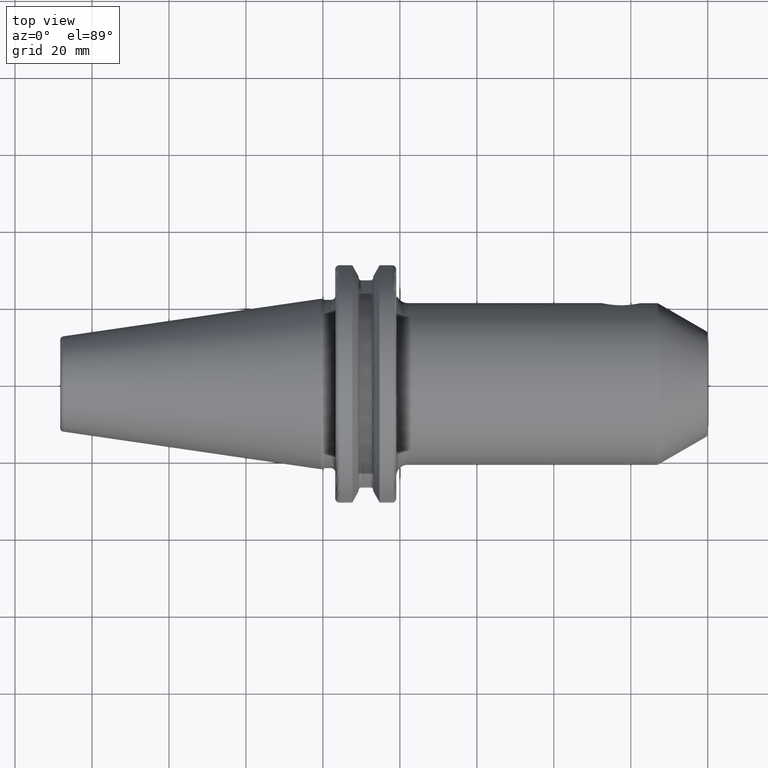
[diagram: clean part render]
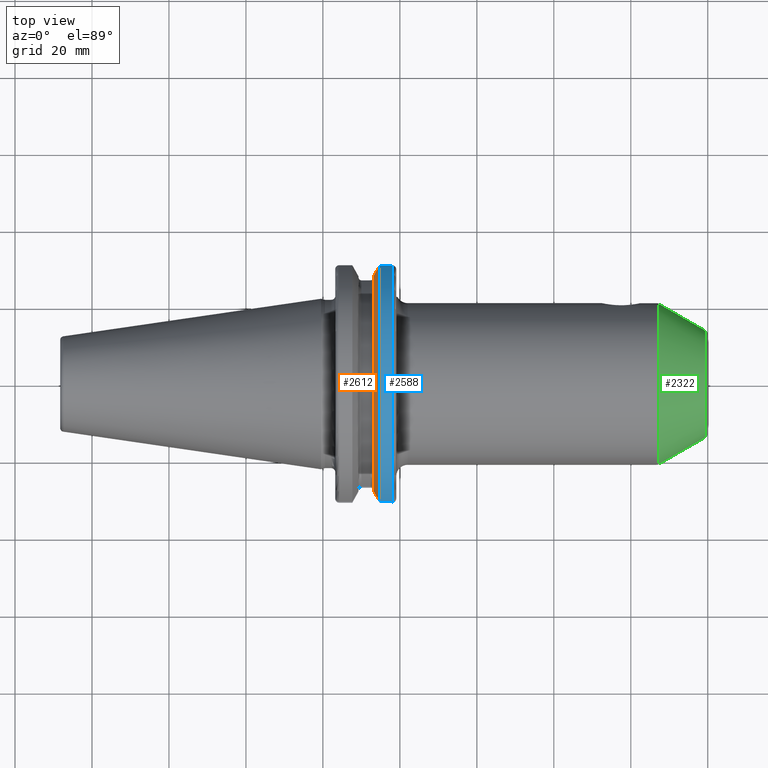
[diagram: same view with three faces highlighted in distinct colors, each labeled with its STEP entity id]
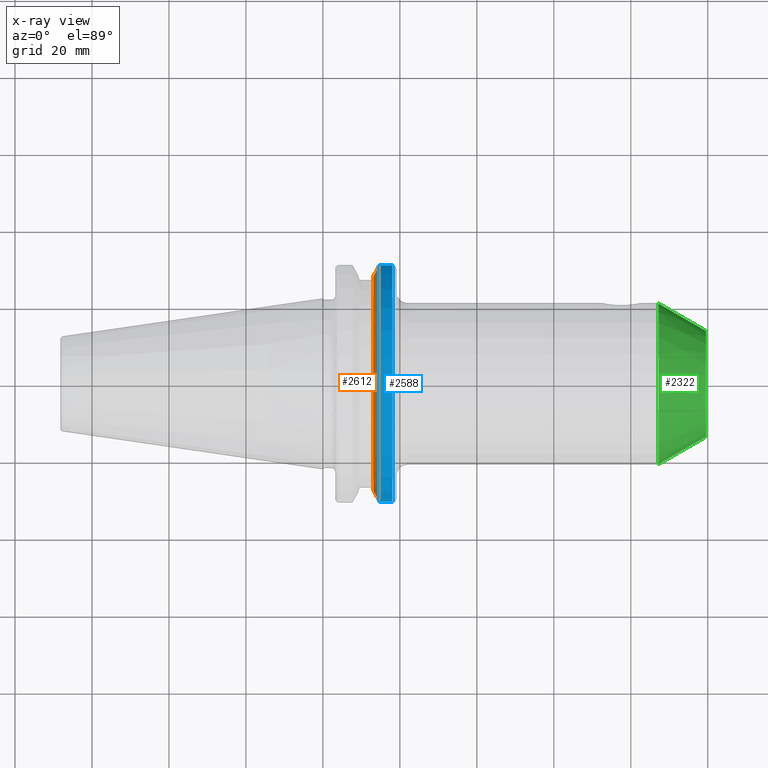
[diagram: x-ray of the same camera — body ghosted, the three highlighted faces saturated]
A machine part, top view with three faces highlighted in distinct colors.
The next image is the same camera in x-ray (body ghosted, the three faces saturated) — at least one of them is partly hidden behind the body in this view.
Their STEP definitions:

[orange] entity #2612 — the highlighted conical surface has half-angle 60 deg.
#917=CARTESIAN_POINT('',(1.470405352042E1,0.E0,0.E0));
#918=DIRECTION('',(1.E0,0.E0,0.E0));
#919=DIRECTION('',(0.E0,9.669363825036E-1,2.550177095632E-1));
#920=AXIS2_PLACEMENT_3D('',#917,#918,#919);
#949=CARTESIAN_POINT('',(1.470405352042E1,3.071231684927E1,8.1E0));
#950=CARTESIAN_POINT('',(1.451824513517E1,3.037948258059E1,8.1E0));
#951=CARTESIAN_POINT('',(1.415074718503E1,2.972048825911E1,8.1E0));
#952=CARTESIAN_POINT('',(1.361195207986E1,2.875212438619E1,8.1E0));
#953=CARTESIAN_POINT('',(1.326094199325E1,2.811971443922E1,8.1E0));
#954=CARTESIAN_POINT('',(1.30875E1,2.780681820245E1,8.1E0));
#956=CARTESIAN_POINT('',(1.30875E1,-2.780681820245E1,8.1E0));
#957=CARTESIAN_POINT('',(1.326086175289E1,-2.811956968242E1,8.1E0));
#958=CARTESIAN_POINT('',(1.361176448515E1,-2.875178670793E1,8.1E0));
#959=CARTESIAN_POINT('',(1.415055493375E1,-2.972014324708E1,8.1E0));
#960=CARTESIAN_POINT('',(1.451816260441E1,-3.037933474515E1,8.1E0));
#961=CARTESIAN_POINT('',(1.470405352042E1,-3.071231684927E1,8.1E0));
#963=CARTESIAN_POINT('',(1.30875E1,0.E0,0.E0));
#964=DIRECTION('',(1.E0,0.E0,0.E0));
#965=DIRECTION('',(0.E0,9.600957415706E-1,2.796715341576E-1));
#966=AXIS2_PLACEMENT_3D('',#963,#964,#965);
#1460=CARTESIAN_POINT('',(1.30875E1,2.780681820245E1,8.1E0));
#1461=VERTEX_POINT('',#1460);
#1470=CARTESIAN_POINT('',(1.30875E1,-2.780681820245E1,8.1E0));
#1471=VERTEX_POINT('',#1470);
#1480=VERTEX_POINT('',#949);
#1481=VERTEX_POINT('',#961);
#2601=CARTESIAN_POINT('',(1.389577676021E1,0.E0,0.E0));
#2602=DIRECTION('',(1.E0,0.E0,0.E0));
#2603=DIRECTION('',(0.E0,-1.E0,0.E0));
#2604=AXIS2_PLACEMENT_3D('',#2601,#2602,#2603);
#2605=CONICAL_SURFACE('',#2604,3.036252358474E1,6.E1);
#2606=ORIENTED_EDGE('',*,*,#2180,.F.);
#2607=ORIENTED_EDGE('',*,*,#2584,.T.);
#2608=ORIENTED_EDGE('',*,*,#2451,.F.);
#2609=ORIENTED_EDGE('',*,*,#2132,.F.);
#2610=EDGE_LOOP('',(#2606,#2607,#2608,#2609));
#2611=FACE_OUTER_BOUND('',#2610,.F.);
#2612=ADVANCED_FACE('',(#2611),#2605,.T.);
#921=CIRCLE('',#920,3.17625E1);
#955=B_SPLINE_CURVE_WITH_KNOTS('',3,(#949,#950,#951,#952,#953,#954),
.UNSPECIFIED.,.F.,.F.,(4,1,1,4),(0.E0,3.333333333333E-1,6.666666666667E-1,1.E0),
.UNSPECIFIED.);
#962=B_SPLINE_CURVE_WITH_KNOTS('',3,(#956,#957,#958,#959,#960,#961),
.UNSPECIFIED.,.F.,.F.,(4,1,1,4),(0.E0,3.333333333333E-1,6.666666666667E-1,1.E0),
.UNSPECIFIED.);
#967=CIRCLE('',#966,2.896254716948E1);
#2132=EDGE_CURVE('',#1461,#1471,#967,.T.);
#2180=EDGE_CURVE('',#1480,#1461,#955,.T.);
#2451=EDGE_CURVE('',#1471,#1481,#962,.T.);
#2584=EDGE_CURVE('',#1480,#1481,#921,.T.);

[blue] entity #2588 — the highlighted cylindrical surface (partial cylindrical patch) has radius 31.7625 mm, axis along (1, 0, 0).
#904=DIRECTION('',(1.E0,0.E0,0.E0));
#905=VECTOR('',#904,3.345946479578E0);
#906=CARTESIAN_POINT('',(1.470405352042E1,3.071231684927E1,8.1E0));
#907=LINE('',#906,#905);
#908=CARTESIAN_POINT('',(1.805E1,0.E0,0.E0));
#909=DIRECTION('',(1.E0,0.E0,0.E0));
#910=DIRECTION('',(0.E0,9.669363825036E-1,2.550177095632E-1));
#911=AXIS2_PLACEMENT_3D('',#908,#909,#910);
#913=DIRECTION('',(1.E0,0.E0,0.E0));
#914=VECTOR('',#913,3.345946479578E0);
#915=CARTESIAN_POINT('',(1.470405352042E1,-3.071231684927E1,8.1E0));
#916=LINE('',#915,#914);
#917=CARTESIAN_POINT('',(1.470405352042E1,0.E0,0.E0));
#918=DIRECTION('',(1.E0,0.E0,0.E0));
#919=DIRECTION('',(0.E0,9.669363825036E-1,2.550177095632E-1));
#920=AXIS2_PLACEMENT_3D('',#917,#918,#919);
#949=CARTESIAN_POINT('',(1.470405352042E1,3.071231684927E1,8.1E0));
#961=CARTESIAN_POINT('',(1.470405352042E1,-3.071231684927E1,8.1E0));
#1480=VERTEX_POINT('',#949);
#1481=VERTEX_POINT('',#961);
#1504=CARTESIAN_POINT('',(1.805E1,3.071231684927E1,8.1E0));
#1505=VERTEX_POINT('',#1504);
#1508=CARTESIAN_POINT('',(1.805E1,-3.071231684927E1,8.1E0));
#1509=VERTEX_POINT('',#1508);
#2576=CARTESIAN_POINT('',(-7.2615E1,0.E0,0.E0));
#2577=DIRECTION('',(1.E0,0.E0,0.E0));
#2578=DIRECTION('',(0.E0,-1.E0,0.E0));
#2579=AXIS2_PLACEMENT_3D('',#2576,#2577,#2578);
#2580=CYLINDRICAL_SURFACE('',#2579,3.17625E1);
#2581=ORIENTED_EDGE('',*,*,#2178,.T.);
#2582=ORIENTED_EDGE('',*,*,#2432,.T.);
#2583=ORIENTED_EDGE('',*,*,#2453,.F.);
#2585=ORIENTED_EDGE('',*,*,#2584,.F.);
#2586=EDGE_LOOP('',(#2581,#2582,#2583,#2585));
#2587=FACE_OUTER_BOUND('',#2586,.F.);
#2588=ADVANCED_FACE('',(#2587),#2580,.T.);
#912=CIRCLE('',#911,3.17625E1);
#921=CIRCLE('',#920,3.17625E1);
#2178=EDGE_CURVE('',#1480,#1505,#907,.T.);
#2432=EDGE_CURVE('',#1505,#1509,#912,.T.);
#2453=EDGE_CURVE('',#1481,#1509,#916,.T.);
#2584=EDGE_CURVE('',#1480,#1481,#921,.T.);

[green] entity #2322 — the highlighted conical surface has half-angle 30 deg.
#614=CARTESIAN_POINT('',(8.723205080757E1,0.E0,0.E0));
#615=DIRECTION('',(-1.E0,0.E0,0.E0));
#616=DIRECTION('',(0.E0,-1.E0,0.E0));
#617=AXIS2_PLACEMENT_3D('',#614,#615,#616);
#619=CARTESIAN_POINT('',(9.95E1,0.E0,0.E0));
#620=DIRECTION('',(-1.E0,0.E0,0.E0));
#621=DIRECTION('',(0.E0,-1.E0,0.E0));
#622=AXIS2_PLACEMENT_3D('',#619,#620,#621);
#629=DIRECTION('',(-8.660254037844E-1,-5.E-1,-1.274919091698E-13));
#630=VECTOR('',#629,1.416580753731E1);
#631=CARTESIAN_POINT('',(9.95E1,-1.378312163513E1,2.508101754437E-12));
#632=LINE('',#631,#630);
#638=DIRECTION('',(-8.660254037844E-1,5.E-1,1.273617350162E-13));
#639=VECTOR('',#638,1.416580753731E1);
#640=CARTESIAN_POINT('',(9.95E1,1.378312163513E1,-2.508527210279E-12));
#641=LINE('',#640,#639);
#1591=CARTESIAN_POINT('',(8.723205080757E1,2.086602540378E1,0.E0));
#1592=CARTESIAN_POINT('',(8.723205080757E1,-2.086602540378E1,0.E0));
#1593=VERTEX_POINT('',#1591);
#1594=VERTEX_POINT('',#1592);
#1595=CARTESIAN_POINT('',(9.95E1,1.378312163513E1,0.E0));
#1596=CARTESIAN_POINT('',(9.95E1,-1.378312163513E1,0.E0));
#1597=VERTEX_POINT('',#1595);
#1598=VERTEX_POINT('',#1596);
#2308=CARTESIAN_POINT('',(9.336602540378E1,0.E0,0.E0));
#2309=DIRECTION('',(-1.E0,0.E0,0.E0));
#2310=DIRECTION('',(0.E0,1.E0,0.E0));
#2311=AXIS2_PLACEMENT_3D('',#2308,#2309,#2310);
#2312=CONICAL_SURFACE('',#2311,1.732457351946E1,3.E1);
#2313=ORIENTED_EDGE('',*,*,#2302,.T.);
#2315=ORIENTED_EDGE('',*,*,#2314,.F.);
#2317=ORIENTED_EDGE('',*,*,#2316,.F.);
#2319=ORIENTED_EDGE('',*,*,#2318,.T.);
#2320=EDGE_LOOP('',(#2313,#2315,#2317,#2319));
#2321=FACE_OUTER_BOUND('',#2320,.F.);
#2322=ADVANCED_FACE('',(#2321),#2312,.T.);
#618=CIRCLE('',#617,2.086602540378E1);
#623=CIRCLE('',#622,1.378312163513E1);
#2302=EDGE_CURVE('',#1594,#1593,#618,.T.);
#2314=EDGE_CURVE('',#1597,#1593,#641,.T.);
#2316=EDGE_CURVE('',#1598,#1597,#623,.T.);
#2318=EDGE_CURVE('',#1598,#1594,#632,.T.);